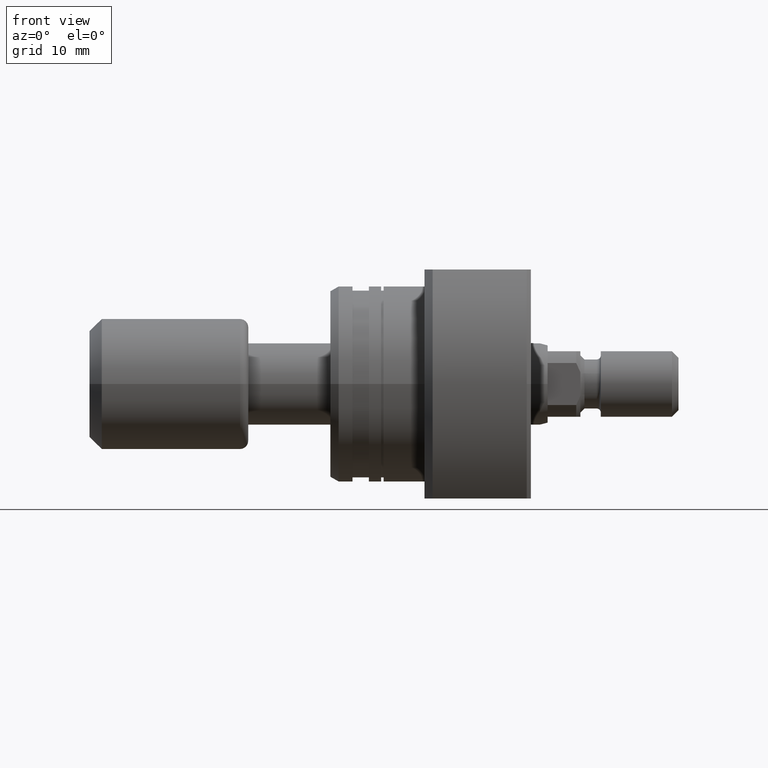
[diagram: clean part render]
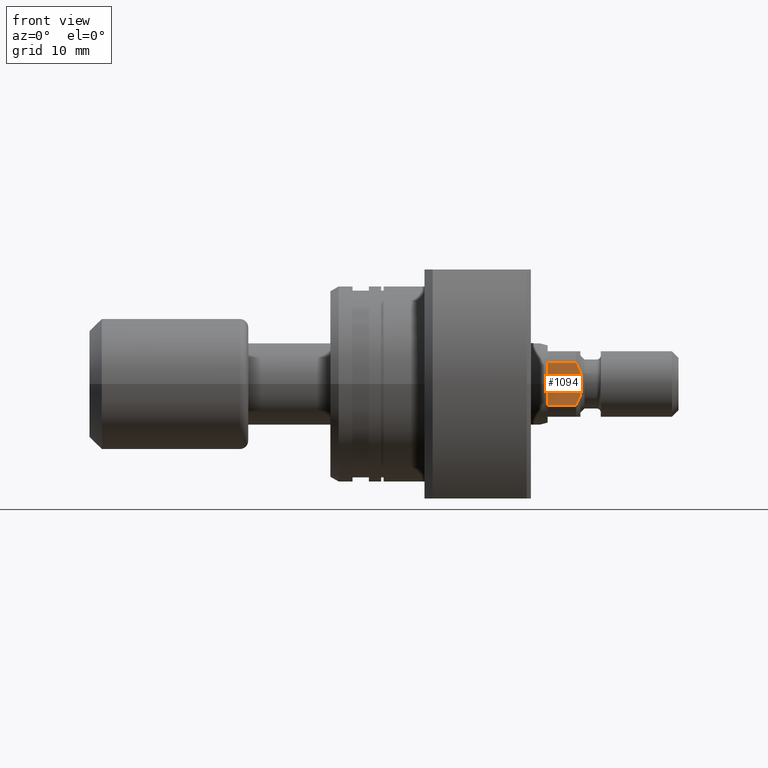
[diagram: same view with one face highlighted and labeled with its STEP entity id]
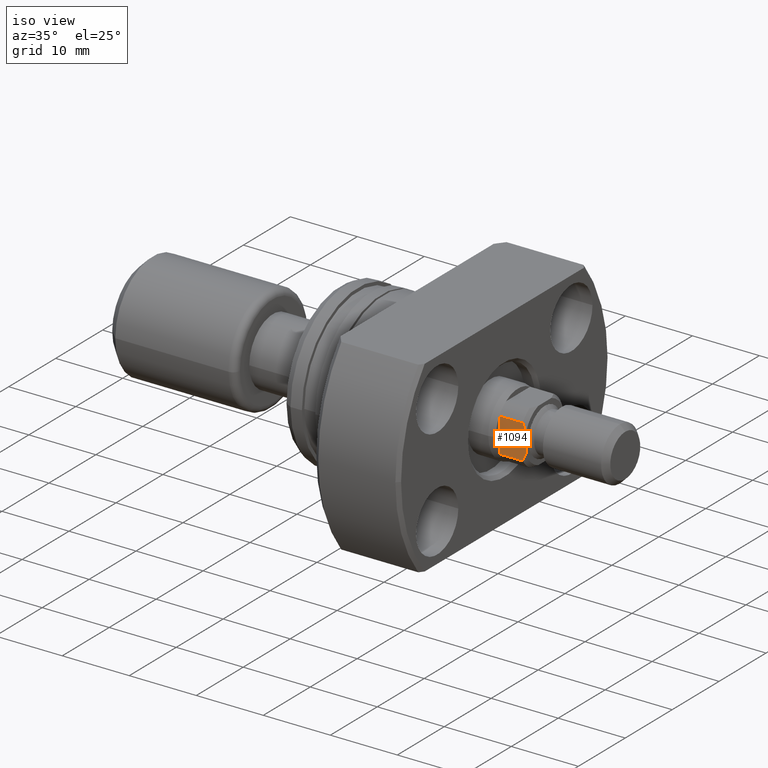
[diagram: same view with one face highlighted and labeled with its STEP entity id]
A machine part, front view. The second image highlights one B-rep face of the part: STEP entity #1094.
A second angle (iso view) of the same face is appended — the face is thin or edge-on in the first view.
In plain terms, the highlighted planar face has unit normal (0, 1, 0).
Its self-contained STEP definition (entity closure, byte-faithful):
#4 = VECTOR ( 'NONE', #1718, 1000.000000000000000 ) ;
#13 = PLANE ( 'NONE',  #1061 ) ;
#252 = DIRECTION ( 'NONE',  ( 0.000000000000000000, -5.078750300252043906E-16, 1.000000000000000000 ) ) ;
#376 = LINE ( 'NONE', #2114, #2290 ) ;
#444 = LINE ( 'NONE', #2480, #2350 ) ;
#545 = CARTESIAN_POINT ( 'NONE',  ( 55.99999999999990763, -4.000000000000205169, -2.561737691490130420 ) ) ;
#612 = LINE ( 'NONE', #1486, #4 ) ;
#779 = ORIENTED_EDGE ( 'NONE', *, *, #2536, .T. ) ;
#791 = VERTEX_POINT ( 'NONE', #1145 ) ;
#817 = CARTESIAN_POINT ( 'NONE',  ( 59.49999999999997868, -4.000000000000262901, -2.561737691490130420 ) ) ;
#836 = CARTESIAN_POINT ( 'NONE',  ( 59.49999999999997158, -3.999999999999360956, 2.561737691491537738 ) ) ;
#996 = ORIENTED_EDGE ( 'NONE', *, *, #1082, .T. ) ;
#1045 = CARTESIAN_POINT ( 'NONE',  ( 59.99999999999991473, -3.999999999999819700, 1.436140661635499249 ) ) ;
#1061 = AXIS2_PLACEMENT_3D ( 'NONE', #3383, #1955, #3088 ) ;
#1082 = EDGE_CURVE ( 'NONE', #2859, #791, #444, .T. ) ;
#1089 = VERTEX_POINT ( 'NONE', #836 ) ;
#1094 = ADVANCED_FACE ( 'NONE', ( #2756 ), #13, .F. ) ;
#1119 = EDGE_CURVE ( 'NONE', #3661, #2859, #1610, .T. ) ;
#1145 = CARTESIAN_POINT ( 'NONE',  ( 59.99999999999991473, -3.999999999999819700, 1.436140661635499249 ) ) ;
#1289 = CARTESIAN_POINT ( 'NONE',  ( 59.69545340717274229, -4.000000000000124345, -2.199326002285955095 ) ) ;
#1439 = ORIENTED_EDGE ( 'NONE', *, *, #3217, .T. ) ;
#1486 = CARTESIAN_POINT ( 'NONE',  ( 55.99999999999990763, -4.000000000000205169, -2.561737691490130420 ) ) ;
#1580 = VECTOR ( 'NONE', #1933, 1000.000000000000000 ) ;
#1610 = B_SPLINE_CURVE_WITH_KNOTS ( 'NONE', 3,
 ( #817, #1289, #1917, #3065 ),
 .UNSPECIFIED., .F., .F.,
 ( 4, 4 ),
 ( 8.344835848757740044E-17, 0.001231652821868751404 ),
 .UNSPECIFIED. ) ;
#1718 = DIRECTION ( 'NONE',  ( 1.000000000000000000, -1.657264799492230625E-14, -0.000000000000000000 ) ) ;
#1917 = CARTESIAN_POINT ( 'NONE',  ( 59.86800940637678536, -3.999999999999816147, -1.826743085119452603 ) ) ;
#1933 = DIRECTION ( 'NONE',  ( 1.000000000000000000, -1.657264799492230625E-14, -0.000000000000000000 ) ) ;
#1955 = DIRECTION ( 'NONE',  ( 1.657264799492230625E-14, 1.000000000000000000, 5.078750300252043906E-16 ) ) ;
#2098 = EDGE_CURVE ( 'NONE', #2639, #3119, #376, .T. ) ;
#2114 = CARTESIAN_POINT ( 'NONE',  ( 55.99999999999990763, -3.999999999999752198, -2.561737691489840429 ) ) ;
#2160 = CARTESIAN_POINT ( 'NONE',  ( 59.69545340717260729, -3.999999999999816147, 2.199326002286811299 ) ) ;
#2224 = CARTESIAN_POINT ( 'NONE',  ( 55.99999999999990763, -3.999999999999302780, 2.561737691491537738 ) ) ;
#2247 = LINE ( 'NONE', #2806, #1580 ) ;
#2290 = VECTOR ( 'NONE', #2338, 1000.000000000000000 ) ;
#2317 = ORIENTED_EDGE ( 'NONE', *, *, #2635, .F. ) ;
#2338 = DIRECTION ( 'NONE',  ( 0.000000000000000000, -5.078750300252043906E-16, 1.000000000000000000 ) ) ;
#2350 = VECTOR ( 'NONE', #252, 1000.000000000000000 ) ;
#2429 = CARTESIAN_POINT ( 'NONE',  ( 59.86800940637663615, -3.999999999999817923, 1.826743085119869825 ) ) ;
#2480 = CARTESIAN_POINT ( 'NONE',  ( 59.99999999999991473, -3.999999999999817923, -2.561737691489840429 ) ) ;
#2536 = EDGE_CURVE ( 'NONE', #791, #1089, #2769, .T. ) ;
#2635 = EDGE_CURVE ( 'NONE', #3119, #1089, #2247, .T. ) ;
#2639 = VERTEX_POINT ( 'NONE', #545 ) ;
#2756 = FACE_OUTER_BOUND ( 'NONE', #3049, .T. ) ;
#2769 = B_SPLINE_CURVE_WITH_KNOTS ( 'NONE', 3,
 ( #1045, #2429, #2160, #2947 ),
 .UNSPECIFIED., .F., .F.,
 ( 4, 4 ),
 ( 2.929914699301841934E-17, 0.001231652821870167589 ),
 .UNSPECIFIED. ) ;
#2806 = CARTESIAN_POINT ( 'NONE',  ( 55.99999999999990763, -3.999999999999302780, 2.561737691491537738 ) ) ;
#2844 = CARTESIAN_POINT ( 'NONE',  ( 59.49999999999997868, -4.000000000000262901, -2.561737691490130420 ) ) ;
#2859 = VERTEX_POINT ( 'NONE', #3000 ) ;
#2947 = CARTESIAN_POINT ( 'NONE',  ( 59.49999999999997158, -3.999999999999360956, 2.561737691491537738 ) ) ;
#3000 = CARTESIAN_POINT ( 'NONE',  ( 59.99999999999998579, -3.999999999999817923, -1.436140661635549431 ) ) ;
#3049 = EDGE_LOOP ( 'NONE', ( #1439, #3518, #996, #779, #2317, #3567 ) ) ;
#3065 = CARTESIAN_POINT ( 'NONE',  ( 59.99999999999998579, -3.999999999999817923, -1.436140661635549431 ) ) ;
#3088 = DIRECTION ( 'NONE',  ( -1.000000000000000000, 1.657264799492230625E-14, 0.000000000000000000 ) ) ;
#3119 = VERTEX_POINT ( 'NONE', #2224 ) ;
#3217 = EDGE_CURVE ( 'NONE', #2639, #3661, #612, .T. ) ;
#3383 = CARTESIAN_POINT ( 'NONE',  ( 55.99999999999990763, -3.999999999999752198, -2.561737691489840429 ) ) ;
#3518 = ORIENTED_EDGE ( 'NONE', *, *, #1119, .T. ) ;
#3567 = ORIENTED_EDGE ( 'NONE', *, *, #2098, .F. ) ;
#3661 = VERTEX_POINT ( 'NONE', #2844 ) ;